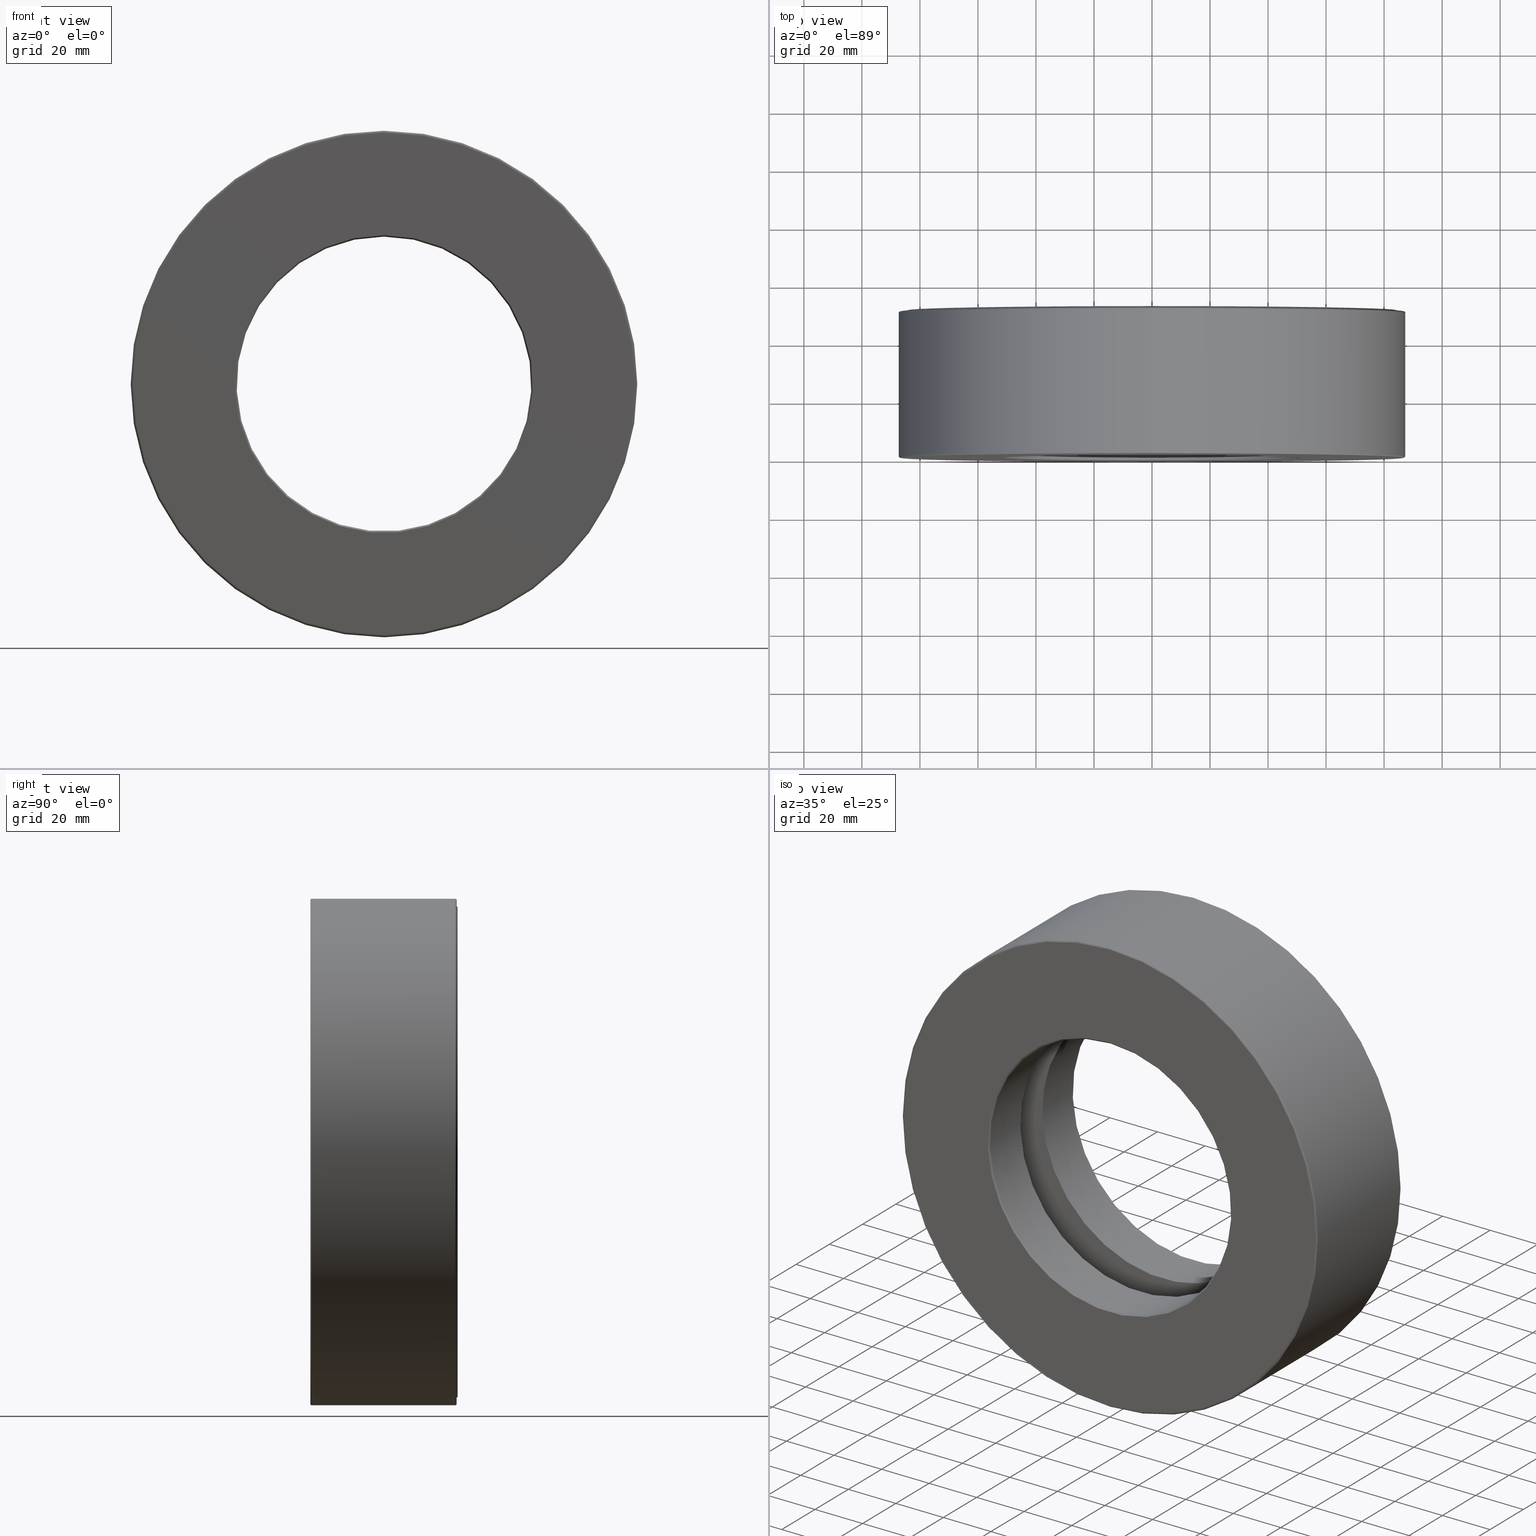
[diagram: canonical four-view strip — front | top / right | iso, engineering-drawing reading convention]
A machine part, canonical four-view strip (front | top / right | iso — engineering-drawing reading convention). The complete STEP part file that produces these views, byte-faithful:
ISO-10303-21;
HEADER;
FILE_DESCRIPTION (( 'STEP AP203' ),
    '1' );
FILE_NAME ('T-100-52.step',
    '2016-06-29T18:27:44',
    ( '' ),
    ( '' ),
    'SwSTEP 2.0',
    'SolidWorks 2016',
    '' );
FILE_SCHEMA (( 'CONFIG_CONTROL_DESIGN' ));
ENDSEC;

DATA;
#1 = EDGE_CURVE ( 'NONE', #572, #572, #26, .T. ) ;
#2 = CIRCLE ( 'NONE', #331, 2.020000000000000500 ) ;
#3 = CARTESIAN_POINT ( 'NONE',  ( 0.0000000000000000000, 0.7374999999999996000, 3.417500000000000000 ) ) ;
#4 = VERTEX_POINT ( 'NONE', #431 ) ;
#5 = AXIS2_PLACEMENT_3D ( 'NONE', #587, #73, #182 ) ;
#6 = CARTESIAN_POINT ( 'NONE',  ( 0.0000000000000000000, 1.999999999999999800, 0.0000000000000000000 ) ) ;
#7 = DIRECTION ( 'NONE',  ( 0.0000000000000000000, 0.0000000000000000000, 1.000000000000000000 ) ) ;
#8 = CLOSED_SHELL ( 'NONE', ( #452 ) ) ;
#9 = EDGE_LOOP ( 'NONE', ( #128 ) ) ;
#10 = FACE_BOUND ( 'NONE', #75, .T. ) ;
#11 = VERTEX_POINT ( 'NONE', #377 ) ;
#12 = DESIGN_CONTEXT ( 'detailed design', #260, 'design' ) ;
#13 = DIRECTION ( 'NONE',  ( -0.0000000000000000000, 1.000000000000000000, -0.0000000000000000000 ) ) ;
#14 = AXIS2_PLACEMENT_3D ( 'NONE', #588, #123, #497 ) ;
#15 = DIRECTION ( 'NONE',  ( -0.0000000000000000000, 1.000000000000000000, -0.0000000000000000000 ) ) ;
#16 = ADVANCED_FACE ( 'NONE', ( ), #236, .T. ) ;
#17 = ORIENTED_EDGE ( 'NONE', *, *, #300, .T. ) ;
#18 = PERSON_AND_ORGANIZATION ( #30, #92 ) ;
#19 = APPROVAL_STATUS ( 'not_yet_approved' ) ;
#20 = VERTEX_POINT ( 'NONE', #99 ) ;
#21 = APPROVAL_STATUS ( 'not_yet_approved' ) ;
#22 = ADVANCED_FACE ( 'NONE', ( #458, #264 ), #60, .T. ) ;
#23 = ORIENTED_EDGE ( 'NONE', *, *, #595, .F. ) ;
#24 = ORIENTED_EDGE ( 'NONE', *, *, #1, .T. ) ;
#25 = AXIS2_PLACEMENT_3D ( 'NONE', #183, #552, #373 ) ;
#26 = CIRCLE ( 'NONE', #356, 3.417500000000000400 ) ;
#27 = PERSON_AND_ORGANIZATION_ROLE ( 'design_supplier' ) ;
#28 = CARTESIAN_POINT ( 'NONE',  ( 2.971000000000000500, 1.000000000000000000, -2.074638211540590300E-014 ) ) ;
#29 = ORIENTED_EDGE ( 'NONE', *, *, #400, .T. ) ;
#30 = PERSON ( 'UNSPECIFIED', 'UNSPECIFIED', 'UNSPECIFIED', ('UNSPECIFIED'), ('UNSPECIFIED'), ('UNSPECIFIED') ) ;
#31 = PERSON_AND_ORGANIZATION ( #30, #92 ) ;
#32 = DIRECTION ( 'NONE',  ( 0.0000000000000000000, -1.000000000000000000, 0.0000000000000000000 ) ) ;
#33 = AXIS2_PLACEMENT_3D ( 'NONE', #248, #335, #195 ) ;
#34 = CARTESIAN_POINT ( 'NONE',  ( 0.0000000000000000000, 1.964999999999999900, 0.0000000000000000000 ) ) ;
#35 = EDGE_LOOP ( 'NONE', ( #168 ) ) ;
#36 = DIRECTION ( 'NONE',  ( 0.0000000000000000000, 0.0000000000000000000, 1.000000000000000000 ) ) ;
#37 = EDGE_LOOP ( 'NONE', ( #136 ) ) ;
#38 = CIRCLE ( 'NONE', #281, 3.357499999999999900 ) ;
#39 = ADVANCED_FACE ( 'NONE', ( #304, #167 ), #323, .T. ) ;
#40 = DIRECTION ( 'NONE',  ( 0.0000000000000000000, 0.0000000000000000000, 1.000000000000000000 ) ) ;
#41 = AXIS2_PLACEMENT_3D ( 'NONE', #355, #141, #177 ) ;
#42 = DIRECTION ( 'NONE',  ( 0.0000000000000000000, 0.0000000000000000000, 1.000000000000000000 ) ) ;
#43 = EDGE_LOOP ( 'NONE', ( #482 ) ) ;
#44 = ADVANCED_BREP_SHAPE_REPRESENTATION ( 'T-100-52', ( #102, #365, #455, #268, #172, #66, #242 ), #233 ) ;
#45 = CARTESIAN_POINT ( 'NONE',  ( 0.0000000000000000000, -2.326339307104724200E-016, 3.422499999999999900 ) ) ;
#46 = PRODUCT_RELATED_PRODUCT_CATEGORY ( 'detail', '', ( #589 ) ) ;
#47 = CARTESIAN_POINT ( 'NONE',  ( 0.0000000000000000000, 0.7374999999999999300, 2.000000000000000000 ) ) ;
#48 = ORIENTED_EDGE ( 'NONE', *, *, #49, .F. ) ;
#49 = EDGE_CURVE ( 'NONE', #4, #4, #449, .T. ) ;
#50 = FACE_OUTER_BOUND ( 'NONE', #184, .T. ) ;
#51 = AXIS2_PLACEMENT_3D ( 'NONE', #573, #15, #343 ) ;
#52 = DIRECTION ( 'NONE',  ( 0.0000000000000000000, 0.0000000000000000000, 1.000000000000000000 ) ) ;
#53 = EDGE_CURVE ( 'NONE', #577, #577, #551, .T. ) ;
#54 = EDGE_LOOP ( 'NONE', ( #490 ) ) ;
#55 = FACE_OUTER_BOUND ( 'NONE', #254, .T. ) ;
#56 = ADVANCED_FACE ( 'NONE', ( ), #351, .T. ) ;
#57 = APPROVAL_ROLE ( '' ) ;
#58 = EDGE_LOOP ( 'NONE', ( #229 ) ) ;
#59 = AXIS2_PLACEMENT_3D ( 'NONE', #107, #158, #481 ) ;
#60 = CONICAL_SURFACE ( 'NONE', #84, 3.412500000000000100, 0.7853981633974505000 ) ;
#61 = LENGTH_MEASURE_WITH_UNIT ( LENGTH_MEASURE( 0.02539999999999999900 ), #511 );
#62 = DIRECTION ( 'NONE',  ( 0.0000000000000000000, 0.0000000000000000000, -1.000000000000000000 ) ) ;
#63 = EDGE_LOOP ( 'NONE', ( #471 ) ) ;
#64 = AXIS2_PLACEMENT_3D ( 'NONE', #203, #13, #202 ) ;
#65 = PLANE ( 'NONE',  #597 ) ;
#66 = MANIFOLD_SOLID_BREP ( 'BALLS[3]', #272 ) ;
#67 = FACE_OUTER_BOUND ( 'NONE', #119, .T. ) ;
#68 = DATE_AND_TIME ( #295, #170 ) ;
#69 = VERTEX_POINT ( 'NONE', #567 ) ;
#70 = DIRECTION ( 'NONE',  ( 0.0000000000000000000, 0.0000000000000000000, 1.000000000000000000 ) ) ;
#71 = AXIS2_PLACEMENT_3D ( 'NONE', #507, #423, #598 ) ;
#72 = PLANE ( 'NONE',  #291 ) ;
#73 = DIRECTION ( 'NONE',  ( 0.0000000000000000000, -1.000000000000000000, 0.0000000000000000000 ) ) ;
#74 = DIRECTION ( 'NONE',  ( 1.000000000000000000, 0.0000000000000000000, 0.0000000000000000000 ) ) ;
#75 = EDGE_LOOP ( 'NONE', ( #333 ) ) ;
#76 = CARTESIAN_POINT ( 'NONE',  ( 0.0000000000000000000, 1.984999999999999400, 0.0000000000000000000 ) ) ;
#77 = CYLINDRICAL_SURFACE ( 'NONE', #14, 2.000000000000000000 ) ;
#78 = FACE_OUTER_BOUND ( 'NONE', #606, .T. ) ;
#79 = EDGE_CURVE ( 'NONE', #69, #69, #312, .T. ) ;
#80 = CARTESIAN_POINT ( 'NONE',  ( 0.0000000000000000000, 0.7374999999999996000, 0.0000000000000000000 ) ) ;
#81 = ADVANCED_FACE ( 'NONE', ( #491, #10 ), #404, .T. ) ;
#82 = AXIS2_PLACEMENT_3D ( 'NONE', #545, #32, #364 ) ;
#83 = DIRECTION ( 'NONE',  ( -0.0000000000000000000, 1.000000000000000000, -0.0000000000000000000 ) ) ;
#84 = AXIS2_PLACEMENT_3D ( 'NONE', #210, #531, #590 ) ;
#85 = DIRECTION ( 'NONE',  ( -0.0000000000000000000, 1.000000000000000000, -0.0000000000000000000 ) ) ;
#86 = ORIENTED_EDGE ( 'NONE', *, *, #319, .T. ) ;
#87 = DIRECTION ( 'NONE',  ( -1.000000000000000000, 0.0000000000000000000, 3.491481338843132200E-015 ) ) ;
#88 = TOROIDAL_SURFACE ( 'NONE', #302, 2.971000000000000100, 0.4374999999999998300 ) ;
#89 = PLANE ( 'NONE',  #25 ) ;
#90 = DIRECTION ( 'NONE',  ( 0.0000000000000000000, 0.0000000000000000000, 1.000000000000000000 ) ) ;
#91 = CARTESIAN_POINT ( 'NONE',  ( 0.0000000000000000000, 0.01499999999999997700, 3.437500000000000000 ) ) ;
#92 = ORGANIZATION ( 'UNSPECIFIED', 'UNSPECIFIED', '' ) ;
#93 =( CONVERSION_BASED_UNIT ( 'INCH', #61 ) LENGTH_UNIT ( ) NAMED_UNIT ( #500 ) );
#94 = EDGE_LOOP ( 'NONE', ( #23 ) ) ;
#95 = CARTESIAN_POINT ( 'NONE',  ( 0.0000000000000000000, 1.262500000000000000, 3.320999999999999700 ) ) ;
#96 = FACE_OUTER_BOUND ( 'NONE', #416, .T. ) ;
#97 = FACE_BOUND ( 'NONE', #292, .T. ) ;
#98 = AXIS2_PLACEMENT_3D ( 'NONE', #80, #134, #504 ) ;
#99 = CARTESIAN_POINT ( 'NONE',  ( 0.0000000000000000000, 1.984999999999999400, 3.357499999999999900 ) ) ;
#100 = DIRECTION ( 'NONE',  ( -0.0000000000000000000, 1.000000000000000000, -0.0000000000000000000 ) ) ;
#101 = CARTESIAN_POINT ( 'NONE',  ( 0.0000000000000000000, 0.0000000000000000000, 0.0000000000000000000 ) ) ;
#102 = MANIFOLD_SOLID_BREP ( 'Revolve2[1]', #521 ) ;
#103 = APPROVAL ( #21, 'UNSPECIFIED' ) ;
#104 = CARTESIAN_POINT ( 'NONE',  ( 0.0000000000000000000, 1.964999999999999200, 0.0000000000000000000 ) ) ;
#105 = ORIENTED_EDGE ( 'NONE', *, *, #251, .T. ) ;
#106 = FACE_BOUND ( 'NONE', #262, .T. ) ;
#107 = CARTESIAN_POINT ( 'NONE',  ( 0.0000000000000000000, 0.0000000000000000000, 0.0000000000000000000 ) ) ;
#108 = DIRECTION ( 'NONE',  ( 0.0000000000000000000, 0.0000000000000000000, 1.000000000000000000 ) ) ;
#109 = DATE_AND_TIME ( #475, #245 ) ;
#110 = AXIS2_PLACEMENT_3D ( 'NONE', #418, #85, #422 ) ;
#111 = SPHERICAL_SURFACE ( 'NONE', #211, 0.4374999999999998900 ) ;
#112 = ADVANCED_FACE ( 'NONE', ( #341, #509 ), #72, .F. ) ;
#113 = ORIENTED_EDGE ( 'NONE', *, *, #117, .T. ) ;
#114 = FACE_OUTER_BOUND ( 'NONE', #461, .T. ) ;
#115 = VERTEX_POINT ( 'NONE', #243 ) ;
#116 = SECURITY_CLASSIFICATION ( '', '', #165 ) ;
#117 = EDGE_CURVE ( 'NONE', #501, #501, #600, .T. ) ;
#118 = AXIS2_PLACEMENT_3D ( 'NONE', #536, #357, #266 ) ;
#119 = EDGE_LOOP ( 'NONE', ( #135 ) ) ;
#120 = CONICAL_SURFACE ( 'NONE', #349, 2.000000000000000400, 0.7853981633974415100 ) ;
#121 = CARTESIAN_POINT ( 'NONE',  ( 0.0000000000000000000, 0.004999999999998736400, 0.0000000000000000000 ) ) ;
#122 = DIRECTION ( 'NONE',  ( 0.0000000000000000000, 0.0000000000000000000, 1.000000000000000000 ) ) ;
#123 = DIRECTION ( 'NONE',  ( -0.0000000000000000000, 1.000000000000000000, -0.0000000000000000000 ) ) ;
#124 = CARTESIAN_POINT ( 'NONE',  ( -4.194776189887549200E-016, 2.000000000000000000, 0.0000000000000000000 ) ) ;
#125 = DIRECTION ( 'NONE',  ( -0.0000000000000000000, 1.000000000000000000, 0.0000000000000000000 ) ) ;
#126 = ORIENTED_EDGE ( 'NONE', *, *, #400, .F. ) ;
#127 = CARTESIAN_POINT ( 'NONE',  ( 2.910488825740508700E-033, -2.325053432460523400E-016, 0.0000000000000000000 ) ) ;
#128 = ORIENTED_EDGE ( 'NONE', *, *, #256, .F. ) ;
#129 = CARTESIAN_POINT ( 'NONE',  ( 0.0000000000000000000, 1.262500000000000000, 0.0000000000000000000 ) ) ;
#130 = EDGE_CURVE ( 'NONE', #232, #232, #372, .T. ) ;
#131 = DATE_AND_TIME ( #252, #160 ) ;
#132 = AXIS2_PLACEMENT_3D ( 'NONE', #101, #157, #383 ) ;
#133 = DIRECTION ( 'NONE',  ( 0.0000000000000000000, 0.0000000000000000000, 1.000000000000000000 ) ) ;
#134 = DIRECTION ( 'NONE',  ( -0.0000000000000000000, 1.000000000000000000, -0.0000000000000000000 ) ) ;
#135 = ORIENTED_EDGE ( 'NONE', *, *, #442, .T. ) ;
#136 = ORIENTED_EDGE ( 'NONE', *, *, #79, .T. ) ;
#137 = CARTESIAN_POINT ( 'NONE',  ( 0.0000000000000000000, 1.911999999999999700, 0.0000000000000000000 ) ) ;
#138 = PRODUCT_DEFINITION_FORMATION_WITH_SPECIFIED_SOURCE ( 'ANY', '', #589, .NOT_KNOWN. ) ;
#139 = FACE_OUTER_BOUND ( 'NONE', #145, .T. ) ;
#140 = ADVANCED_FACE ( 'NONE', ( #294, #346 ), #120, .F. ) ;
#141 = DIRECTION ( 'NONE',  ( -0.0000000000000000000, 1.000000000000000000, -0.0000000000000000000 ) ) ;
#142 = AXIS2_PLACEMENT_3D ( 'NONE', #454, #453, #408 ) ;
#143 = CARTESIAN_POINT ( 'NONE',  ( 0.0000000000000000000, 1.000000000000000000, 0.0000000000000000000 ) ) ;
#144 = DIRECTION ( 'NONE',  ( 0.0000000000000000000, -0.0000000000000000000, -1.000000000000000000 ) ) ;
#145 = EDGE_LOOP ( 'NONE', ( #538 ) ) ;
#146 = AXIS2_PLACEMENT_3D ( 'NONE', #519, #561, #286 ) ;
#147 = CARTESIAN_POINT ( 'NONE',  ( 0.0000000000000000000, 1.985000000000000100, 3.417500000000000400 ) ) ;
#148 = FACE_BOUND ( 'NONE', #35, .T. ) ;
#149 = CC_DESIGN_PERSON_AND_ORGANIZATION_ASSIGNMENT ( #18, #489, ( #116 ) ) ;
#150 = CARTESIAN_POINT ( 'NONE',  ( -3.111957317310885400E-014, 1.000000000000000000, -2.971000000000000500 ) ) ;
#151 = EDGE_CURVE ( 'NONE', #444, #444, #280, .T. ) ;
#152 = ORIENTED_EDGE ( 'NONE', *, *, #1, .F. ) ;
#153 = ORIENTED_EDGE ( 'NONE', *, *, #270, .F. ) ;
#154 = FACE_OUTER_BOUND ( 'NONE', #532, .T. ) ;
#155 = AXIS2_PLACEMENT_3D ( 'NONE', #28, #275, #583 ) ;
#156 = AXIS2_PLACEMENT_3D ( 'NONE', #223, #62, #74 ) ;
#157 = DIRECTION ( 'NONE',  ( -0.0000000000000000000, 1.000000000000000000, -0.0000000000000000000 ) ) ;
#158 = DIRECTION ( 'NONE',  ( -0.0000000000000000000, 1.000000000000000000, -0.0000000000000000000 ) ) ;
#159 = EDGE_LOOP ( 'NONE', ( #385 ) ) ;
#160 = LOCAL_TIME ( 14, 27, 44.00000000000000000, #255 ) ;
#161 = ADVANCED_FACE ( 'NONE', ( #193, #114 ), #199, .F. ) ;
#162 = CC_DESIGN_PERSON_AND_ORGANIZATION_ASSIGNMENT ( #31, #212, ( #516 ) ) ;
#163 = EDGE_CURVE ( 'NONE', #459, #459, #479, .T. ) ;
#164 = PERSON_AND_ORGANIZATION_ROLE ( 'design_owner' ) ;
#165 = SECURITY_CLASSIFICATION_LEVEL ( 'unclassified' ) ;
#166 = AXIS2_PLACEMENT_3D ( 'NONE', #592, #269, #359 ) ;
#167 = FACE_BOUND ( 'NONE', #498, .T. ) ;
#168 = ORIENTED_EDGE ( 'NONE', *, *, #256, .T. ) ;
#169 = CYLINDRICAL_SURFACE ( 'NONE', #59, 3.437500000000000000 ) ;
#170 = LOCAL_TIME ( 14, 27, 44.00000000000000000, #180 ) ;
#171 = CC_DESIGN_PERSON_AND_ORGANIZATION_ASSIGNMENT ( #394, #578, ( #138 ) ) ;
#172 = MANIFOLD_SOLID_BREP ( 'BALLS[2]', #526 ) ;
#173 = DIRECTION ( 'NONE',  ( -0.0000000000000000000, 1.000000000000000000, -0.0000000000000000000 ) ) ;
#174 = FACE_BOUND ( 'NONE', #278, .T. ) ;
#175 = ADVANCED_FACE ( 'NONE', ( #106, #139 ), #89, .T. ) ;
#176 = AXIS2_PLACEMENT_3D ( 'NONE', #121, #494, #276 ) ;
#177 = DIRECTION ( 'NONE',  ( 0.0000000000000000000, 0.0000000000000000000, 1.000000000000000000 ) ) ;
#178 = ORIENTED_EDGE ( 'NONE', *, *, #130, .F. ) ;
#179 = EDGE_CURVE ( 'NONE', #566, #566, #388, .T. ) ;
#180 = COORDINATED_UNIVERSAL_TIME_OFFSET ( 5, 0, .BEHIND. ) ;
#181 = PLANE ( 'NONE',  #534 ) ;
#182 = DIRECTION ( 'NONE',  ( 0.0000000000000000000, 0.0000000000000000000, -1.000000000000000000 ) ) ;
#183 = CARTESIAN_POINT ( 'NONE',  ( 0.0000000000000000000, 1.262500000000000000, 0.0000000000000000000 ) ) ;
#184 = EDGE_LOOP ( 'NONE', ( #311 ) ) ;
#185 = ADVANCED_FACE ( 'NONE', ( #186, #250 ), #584, .T. ) ;
#186 = FACE_OUTER_BOUND ( 'NONE', #396, .T. ) ;
#187 = DIRECTION ( 'NONE',  ( 0.0000000000000000000, 0.0000000000000000000, 1.000000000000000000 ) ) ;
#188 = AXIS2_PLACEMENT_3D ( 'NONE', #437, #100, #478 ) ;
#189 = CARTESIAN_POINT ( 'NONE',  ( 0.0000000000000000000, 0.0000000000000000000, 0.0000000000000000000 ) ) ;
#190 = DIRECTION ( 'NONE',  ( 0.0000000000000000000, 0.0000000000000000000, 1.000000000000000000 ) ) ;
#191 = EDGE_LOOP ( 'NONE', ( #430 ) ) ;
#192 = DIRECTION ( 'NONE',  ( 0.0000000000000000000, 0.0000000000000000000, 1.000000000000000000 ) ) ;
#193 = FACE_OUTER_BOUND ( 'NONE', #371, .T. ) ;
#194 = VERTEX_POINT ( 'NONE', #196 ) ;
#195 = DIRECTION ( 'NONE',  ( 0.0000000000000000000, 0.0000000000000000000, 1.000000000000000000 ) ) ;
#196 = CARTESIAN_POINT ( 'NONE',  ( 0.0000000000000000000, 1.979999999999999500, 2.000000000000000400 ) ) ;
#197 = EDGE_CURVE ( 'NONE', #20, #20, #38, .T. ) ;
#198 = ORIENTED_EDGE ( 'NONE', *, *, #412, .F. ) ;
#199 = CYLINDRICAL_SURFACE ( 'NONE', #523, 3.357499999999999900 ) ;
#200 = DIRECTION ( 'NONE',  ( 0.0000000000000000000, -1.000000000000000000, 0.0000000000000000000 ) ) ;
#201 = VERTEX_POINT ( 'NONE', #427 ) ;
#202 = DIRECTION ( 'NONE',  ( 0.0000000000000000000, 0.0000000000000000000, 1.000000000000000000 ) ) ;
#203 = CARTESIAN_POINT ( 'NONE',  ( 0.0000000000000000000, 2.731847993664263200E-016, 0.0000000000000000000 ) ) ;
#204 = ORIENTED_EDGE ( 'NONE', *, *, #442, .F. ) ;
#205 = CYLINDRICAL_SURFACE ( 'NONE', #506, 2.000000000000000000 ) ;
#206 = CIRCLE ( 'NONE', #259, 3.322499999999999300 ) ;
#207 = EDGE_CURVE ( 'NONE', #201, #201, #473, .T. ) ;
#208 = FACE_BOUND ( 'NONE', #63, .T. ) ;
#209 = ADVANCED_FACE ( 'NONE', ( #463, #96 ), #205, .F. ) ;
#210 = CARTESIAN_POINT ( 'NONE',  ( 0.0000000000000000000, -2.315668025879473100E-016, 0.0000000000000000000 ) ) ;
#211 = AXIS2_PLACEMENT_3D ( 'NONE', #150, #560, #289 ) ;
#212 = PERSON_AND_ORGANIZATION_ROLE ( 'creator' ) ;
#213 = EDGE_LOOP ( 'NONE', ( #86 ) ) ;
#214 = FACE_OUTER_BOUND ( 'NONE', #328, .T. ) ;
#215 = VERTEX_POINT ( 'NONE', #374 ) ;
#216 = ADVANCED_FACE ( 'NONE', ( #334, #224 ), #88, .F. ) ;
#217 = DATE_TIME_ROLE ( 'classification_date' ) ;
#218 = DIRECTION ( 'NONE',  ( 1.000000000000000000, 0.0000000000000000000, 0.0000000000000000000 ) ) ;
#219 = DIRECTION ( 'NONE',  ( 0.0000000000000000000, 0.0000000000000000000, 1.000000000000000000 ) ) ;
#220 = AXIS2_PLACEMENT_3D ( 'NONE', #283, #227, #537 ) ;
#221 = AXIS2_PLACEMENT_3D ( 'NONE', #580, #228, #122 ) ;
#222 = EDGE_LOOP ( 'NONE', ( #198 ) ) ;
#223 = CARTESIAN_POINT ( 'NONE',  ( -2.971000000000000500, 1.000000000000000000, 0.0000000000000000000 ) ) ;
#224 = FACE_OUTER_BOUND ( 'NONE', #438, .T. ) ;
#225 = CALENDAR_DATE ( 2016, 29, 6 ) ;
#226 = CARTESIAN_POINT ( 'NONE',  ( 0.0000000000000000000, 1.985000000000000100, 0.0000000000000000000 ) ) ;
#227 = DIRECTION ( 'NONE',  ( -0.0000000000000000000, 1.000000000000000000, -0.0000000000000000000 ) ) ;
#228 = DIRECTION ( 'NONE',  ( -0.0000000000000000000, 1.000000000000000000, -0.0000000000000000000 ) ) ;
#229 = ORIENTED_EDGE ( 'NONE', *, *, #524, .F. ) ;
#230 = EDGE_CURVE ( 'NONE', #336, #336, #557, .T. ) ;
#231 = FACE_OUTER_BOUND ( 'NONE', #456, .T. ) ;
#232 = VERTEX_POINT ( 'NONE', #95 ) ;
#233 =( GEOMETRIC_REPRESENTATION_CONTEXT ( 3 ) GLOBAL_UNCERTAINTY_ASSIGNED_CONTEXT ( ( #517 ) ) GLOBAL_UNIT_ASSIGNED_CONTEXT ( ( #93, #348, #301 ) ) REPRESENTATION_CONTEXT ( 'NONE', 'WORKASPACE' ) );
#234 = CARTESIAN_POINT ( 'NONE',  ( 0.0000000000000000000, 0.7374999999999999300, 0.0000000000000000000 ) ) ;
#235 = EDGE_LOOP ( 'NONE', ( #414 ) ) ;
#236 = SPHERICAL_SURFACE ( 'NONE', #156, 0.4374999999999998900 ) ;
#237 = PERSON_AND_ORGANIZATION ( #30, #92 ) ;
#238 = CIRCLE ( 'NONE', #142, 3.412500000000000100 ) ;
#239 = CARTESIAN_POINT ( 'NONE',  ( 0.0000000000000000000, -2.323767557816322600E-016, 3.417500000000000000 ) ) ;
#240 = DIRECTION ( 'NONE',  ( -0.0000000000000000000, 1.000000000000000000, -0.0000000000000000000 ) ) ;
#241 = CLOSED_SHELL ( 'NONE', ( #175, #216, #487, #209, #140, #81, #415, #553 ) ) ;
#242 = AXIS2_PLACEMENT_3D ( 'NONE', #559, #284, #218 ) ;
#243 = CARTESIAN_POINT ( 'NONE',  ( 0.0000000000000000000, 0.7374999999999997100, 3.320999999999999700 ) ) ;
#244 = FACE_OUTER_BOUND ( 'NONE', #369, .T. ) ;
#245 = LOCAL_TIME ( 14, 27, 44.00000000000000000, #484 ) ;
#246 = DIRECTION ( 'NONE',  ( -0.0000000000000000000, 1.000000000000000000, -0.0000000000000000000 ) ) ;
#247 = CYLINDRICAL_SURFACE ( 'NONE', #33, 3.410500000000000300 ) ;
#248 = CARTESIAN_POINT ( 'NONE',  ( 0.0000000000000000000, 0.0000000000000000000, 0.0000000000000000000 ) ) ;
#249 = EDGE_LOOP ( 'NONE', ( #547 ) ) ;
#250 = FACE_OUTER_BOUND ( 'NONE', #249, .T. ) ;
#251 = EDGE_CURVE ( 'NONE', #363, #363, #571, .T. ) ;
#252 = CALENDAR_DATE ( 2016, 29, 6 ) ;
#253 = CIRCLE ( 'NONE', #434, 3.410500000000000300 ) ;
#254 = EDGE_LOOP ( 'NONE', ( #277 ) ) ;
#255 = COORDINATED_UNIVERSAL_TIME_OFFSET ( 5, 0, .BEHIND. ) ;
#256 = EDGE_CURVE ( 'NONE', #426, #426, #329, .T. ) ;
#257 = APPLICATION_CONTEXT ( 'configuration controlled 3d designs of mechanical parts and assemblies' ) ;
#258 = ADVANCED_FACE ( 'NONE', ( #432, #55 ), #169, .T. ) ;
#259 = AXIS2_PLACEMENT_3D ( 'NONE', #6, #240, #474 ) ;
#260 = APPLICATION_CONTEXT ( 'configuration controlled 3d designs of mechanical parts and assemblies' ) ;
#261 = ORIENTED_EDGE ( 'NONE', *, *, #130, .T. ) ;
#262 = EDGE_LOOP ( 'NONE', ( #261 ) ) ;
#263 = DIRECTION ( 'NONE',  ( -0.0000000000000000000, 1.000000000000000000, 0.0000000000000000000 ) ) ;
#264 = FACE_BOUND ( 'NONE', #508, .T. ) ;
#265 = CC_DESIGN_DATE_AND_TIME_ASSIGNMENT ( #109, #392, ( #516 ) ) ;
#266 = DIRECTION ( 'NONE',  ( 0.0000000000000000000, 0.0000000000000000000, 1.000000000000000000 ) ) ;
#267 = DIRECTION ( 'NONE',  ( -0.0000000000000000000, 1.000000000000000000, -0.0000000000000000000 ) ) ;
#268 = MANIFOLD_SOLID_BREP ( 'BALLS[1]', #8 ) ;
#269 = DIRECTION ( 'NONE',  ( -0.0000000000000000000, 1.000000000000000000, -0.0000000000000000000 ) ) ;
#270 = EDGE_CURVE ( 'NONE', #11, #11, #307, .T. ) ;
#271 = ADVANCED_FACE ( 'NONE', ( #50, #67 ), #483, .F. ) ;
#272 = CLOSED_SHELL ( 'NONE', ( #525 ) ) ;
#273 = DIRECTION ( 'NONE',  ( -0.0000000000000000000, 1.000000000000000000, 0.0000000000000000000 ) ) ;
#274 = PERSON_AND_ORGANIZATION ( #30, #92 ) ;
#275 = DIRECTION ( 'NONE',  ( 6.982962677686264300E-015, -0.0000000000000000000, 1.000000000000000000 ) ) ;
#276 = DIRECTION ( 'NONE',  ( 0.0000000000000000000, 0.0000000000000000000, 1.000000000000000000 ) ) ;
#277 = ORIENTED_EDGE ( 'NONE', *, *, #309, .T. ) ;
#278 = EDGE_LOOP ( 'NONE', ( #548 ) ) ;
#279 = DIRECTION ( 'NONE',  ( 0.0000000000000000000, 0.0000000000000000000, 1.000000000000000000 ) ) ;
#280 = CIRCLE ( 'NONE', #384, 3.410499999999999400 ) ;
#281 = AXIS2_PLACEMENT_3D ( 'NONE', #76, #413, #133 ) ;
#282 = DIRECTION ( 'NONE',  ( -0.0000000000000000000, 1.000000000000000000, -0.0000000000000000000 ) ) ;
#283 = CARTESIAN_POINT ( 'NONE',  ( 0.0000000000000000000, 1.000000000000000000, 0.0000000000000000000 ) ) ;
#284 = DIRECTION ( 'NONE',  ( 0.0000000000000000000, 0.0000000000000000000, 1.000000000000000000 ) ) ;
#285 = ORIENTED_EDGE ( 'NONE', *, *, #179, .F. ) ;
#286 = DIRECTION ( 'NONE',  ( 0.0000000000000000000, -0.0000000000000000000, -1.000000000000000000 ) ) ;
#287 = APPROVAL ( #19, 'UNSPECIFIED' ) ;
#288 = CARTESIAN_POINT ( 'NONE',  ( 0.0000000000000000000, 1.965000000000000300, 3.437500000000000000 ) ) ;
#289 = DIRECTION ( 'NONE',  ( 1.047444401652939700E-014, 0.0000000000000000000, 1.000000000000000000 ) ) ;
#290 = ORIENTED_EDGE ( 'NONE', *, *, #564, .T. ) ;
#291 = AXIS2_PLACEMENT_3D ( 'NONE', #127, #263, #279 ) ;
#292 = EDGE_LOOP ( 'NONE', ( #599 ) ) ;
#293 = CARTESIAN_POINT ( 'NONE',  ( 0.0000000000000000000, 0.02000000000000033300, 2.000000000000000000 ) ) ;
#294 = FACE_OUTER_BOUND ( 'NONE', #213, .T. ) ;
#295 = CALENDAR_DATE ( 2016, 29, 6 ) ;
#296 = EDGE_LOOP ( 'NONE', ( #425 ) ) ;
#297 = CC_DESIGN_DATE_AND_TIME_ASSIGNMENT ( #378, #217, ( #116 ) ) ;
#298 = CLOSED_SHELL ( 'NONE', ( #16 ) ) ;
#299 = FACE_BOUND ( 'NONE', #191, .T. ) ;
#300 = EDGE_CURVE ( 'NONE', #115, #115, #362, .T. ) ;
#301 =( NAMED_UNIT ( * ) SI_UNIT ( $, .STERADIAN. ) SOLID_ANGLE_UNIT ( ) );
#302 = AXIS2_PLACEMENT_3D ( 'NONE', #143, #338, #52 ) ;
#303 = CIRCLE ( 'NONE', #176, 3.417499999999999100 ) ;
#304 = FACE_OUTER_BOUND ( 'NONE', #54, .T. ) ;
#305 = EDGE_LOOP ( 'NONE', ( #570 ) ) ;
#306 = APPROVAL ( #530, 'UNSPECIFIED' ) ;
#307 = CIRCLE ( 'NONE', #399, 3.357499999999999900 ) ;
#308 = APPLICATION_PROTOCOL_DEFINITION ( 'international standard', 'config_control_design', 1994, #257 ) ;
#309 = EDGE_CURVE ( 'NONE', #480, #480, #533, .T. ) ;
#310 = FACE_OUTER_BOUND ( 'NONE', #235, .T. ) ;
#311 = ORIENTED_EDGE ( 'NONE', *, *, #230, .F. ) ;
#312 = CIRCLE ( 'NONE', #568, 2.621000000000000400 ) ;
#313 = SHAPE_DEFINITION_REPRESENTATION ( #435, #44 ) ;
#314 = CARTESIAN_POINT ( 'NONE',  ( -5.586162433546051900E-032, 2.080899838923950600E-017, 0.0000000000000000000 ) ) ;
#315 = FACE_OUTER_BOUND ( 'NONE', #345, .T. ) ;
#316 = DIRECTION ( 'NONE',  ( -0.0000000000000000000, 1.000000000000000000, -0.0000000000000000000 ) ) ;
#317 = DIRECTION ( 'NONE',  ( 0.0000000000000000000, 0.0000000000000000000, 1.000000000000000000 ) ) ;
#318 = CARTESIAN_POINT ( 'NONE',  ( 1.037319105770295100E-014, 1.000000000000000000, 2.971000000000000500 ) ) ;
#319 = EDGE_CURVE ( 'NONE', #379, #379, #2, .T. ) ;
#320 = EDGE_LOOP ( 'NONE', ( #17 ) ) ;
#321 = DIRECTION ( 'NONE',  ( -0.0000000000000000000, 1.000000000000000000, -0.0000000000000000000 ) ) ;
#322 = EDGE_LOOP ( 'NONE', ( #290 ) ) ;
#323 = CONICAL_SURFACE ( 'NONE', #221, 3.422499999999999900, 0.7853981633974496100 ) ;
#324 = VERTEX_POINT ( 'NONE', #604 ) ;
#325 = AXIS2_PLACEMENT_3D ( 'NONE', #129, #502, #563 ) ;
#326 = DIRECTION ( 'NONE',  ( -0.0000000000000000000, 1.000000000000000000, -0.0000000000000000000 ) ) ;
#327 = DIRECTION ( 'NONE',  ( -0.0000000000000000000, 1.000000000000000000, -0.0000000000000000000 ) ) ;
#328 = EDGE_LOOP ( 'NONE', ( #391 ) ) ;
#329 = CIRCLE ( 'NONE', #64, 2.020000000000000000 ) ;
#330 = DIRECTION ( 'NONE',  ( -0.0000000000000000000, 1.000000000000000000, -0.0000000000000000000 ) ) ;
#331 = AXIS2_PLACEMENT_3D ( 'NONE', #389, #352, #190 ) ;
#332 = DIRECTION ( 'NONE',  ( -0.0000000000000000000, 1.000000000000000000, -0.0000000000000000000 ) ) ;
#333 = ORIENTED_EDGE ( 'NONE', *, *, #319, .F. ) ;
#334 = FACE_OUTER_BOUND ( 'NONE', #37, .T. ) ;
#335 = DIRECTION ( 'NONE',  ( -0.0000000000000000000, 1.000000000000000000, -0.0000000000000000000 ) ) ;
#336 = VERTEX_POINT ( 'NONE', #239 ) ;
#337 = DIRECTION ( 'NONE',  ( -0.0000000000000000000, 1.000000000000000000, -0.0000000000000000000 ) ) ;
#338 = DIRECTION ( 'NONE',  ( -0.0000000000000000000, 1.000000000000000000, -0.0000000000000000000 ) ) ;
#339 = AXIS2_PLACEMENT_3D ( 'NONE', #34, #327, #40 ) ;
#340 = EDGE_LOOP ( 'NONE', ( #113 ) ) ;
#341 = FACE_OUTER_BOUND ( 'NONE', #350, .T. ) ;
#342 = LOCAL_TIME ( 14, 27, 44.00000000000000000, #465 ) ;
#343 = DIRECTION ( 'NONE',  ( 0.0000000000000000000, 0.0000000000000000000, 1.000000000000000000 ) ) ;
#344 = ADVANCED_FACE ( 'NONE', ( #244, #593 ), #439, .F. ) ;
#345 = EDGE_LOOP ( 'NONE', ( #376 ) ) ;
#346 = FACE_BOUND ( 'NONE', #520, .T. ) ;
#347 = PERSON_AND_ORGANIZATION ( #30, #92 ) ;
#348 =( NAMED_UNIT ( * ) PLANE_ANGLE_UNIT ( ) SI_UNIT ( $, .RADIAN. ) );
#349 = AXIS2_PLACEMENT_3D ( 'NONE', #596, #83, #187 ) ;
#350 = EDGE_LOOP ( 'NONE', ( #448 ) ) ;
#351 = SPHERICAL_SURFACE ( 'NONE', #155, 0.4374999999999998900 ) ;
#352 = DIRECTION ( 'NONE',  ( -0.0000000000000000000, 1.000000000000000000, -0.0000000000000000000 ) ) ;
#353 = VERTEX_POINT ( 'NONE', #429 ) ;
#354 = CARTESIAN_POINT ( 'NONE',  ( 0.0000000000000000000, 1.262500000000000000, 0.0000000000000000000 ) ) ;
#355 = CARTESIAN_POINT ( 'NONE',  ( 0.0000000000000000000, 0.0000000000000000000, 0.0000000000000000000 ) ) ;
#356 = AXIS2_PLACEMENT_3D ( 'NONE', #226, #316, #544 ) ;
#357 = DIRECTION ( 'NONE',  ( -0.0000000000000000000, 1.000000000000000000, -0.0000000000000000000 ) ) ;
#358 = CONICAL_SURFACE ( 'NONE', #428, 3.322499999999999300, 0.7853981633974498300 ) ;
#359 = DIRECTION ( 'NONE',  ( 0.0000000000000000000, 0.0000000000000000000, 1.000000000000000000 ) ) ;
#360 = EDGE_LOOP ( 'NONE', ( #582 ) ) ;
#361 = AXIS2_PLACEMENT_3D ( 'NONE', #472, #579, #90 ) ;
#362 = CIRCLE ( 'NONE', #585, 3.320999999999999700 ) ;
#363 = VERTEX_POINT ( 'NONE', #45 ) ;
#364 = DIRECTION ( 'NONE',  ( 0.0000000000000000000, -0.0000000000000000000, -1.000000000000000000 ) ) ;
#365 = MANIFOLD_SOLID_BREP ( 'Revolve2[2]', #241 ) ;
#366 = DIRECTION ( 'NONE',  ( 0.0000000000000000000, 0.0000000000000000000, 1.000000000000000000 ) ) ;
#367 = ADVANCED_FACE ( 'NONE', ( #214, #419 ), #77, .F. ) ;
#368 = CC_DESIGN_APPROVAL ( #287, ( #516 ) ) ;
#369 = EDGE_LOOP ( 'NONE', ( #555 ) ) ;
#370 = CARTESIAN_POINT ( 'NONE',  ( 0.0000000000000000000, 1.262500000000000000, 0.0000000000000000000 ) ) ;
#371 = EDGE_LOOP ( 'NONE', ( #153 ) ) ;
#372 = CIRCLE ( 'NONE', #417, 3.320999999999999700 ) ;
#373 = DIRECTION ( 'NONE',  ( 0.0000000000000000000, -0.0000000000000000000, -1.000000000000000000 ) ) ;
#374 = CARTESIAN_POINT ( 'NONE',  ( 0.0000000000000000000, 1.964999999999999200, 3.417500000000000400 ) ) ;
#375 = CARTESIAN_POINT ( 'NONE',  ( 0.0000000000000000000, 2.731847993664263200E-016, 2.020000000000000000 ) ) ;
#376 = ORIENTED_EDGE ( 'NONE', *, *, #151, .T. ) ;
#377 = CARTESIAN_POINT ( 'NONE',  ( 0.0000000000000000000, 1.964999999999999200, 3.357499999999999900 ) ) ;
#378 = DATE_AND_TIME ( #499, #420 ) ;
#379 = VERTEX_POINT ( 'NONE', #381 ) ;
#380 = CC_DESIGN_APPROVAL ( #103, ( #138 ) ) ;
#381 = CARTESIAN_POINT ( 'NONE',  ( 0.0000000000000000000, 2.000000000000000000, 2.020000000000000500 ) ) ;
#382 = CARTESIAN_POINT ( 'NONE',  ( 0.0000000000000000000, 1.262500000000000000, 0.0000000000000000000 ) ) ;
#383 = DIRECTION ( 'NONE',  ( 0.0000000000000000000, 0.0000000000000000000, 1.000000000000000000 ) ) ;
#384 = AXIS2_PLACEMENT_3D ( 'NONE', #137, #510, #594 ) ;
#385 = ORIENTED_EDGE ( 'NONE', *, *, #230, .T. ) ;
#386 = CARTESIAN_POINT ( 'NONE',  ( 0.0000000000000000000, 0.7374999999999997100, 0.0000000000000000000 ) ) ;
#387 = ORIENTED_EDGE ( 'NONE', *, *, #207, .T. ) ;
#388 = CIRCLE ( 'NONE', #98, 3.417500000000000000 ) ;
#389 = CARTESIAN_POINT ( 'NONE',  ( 0.0000000000000000000, 2.000000000000000000, 0.0000000000000000000 ) ) ;
#390 = FACE_BOUND ( 'NONE', #305, .T. ) ;
#391 = ORIENTED_EDGE ( 'NONE', *, *, #163, .F. ) ;
#392 = DATE_TIME_ROLE ( 'creation_date' ) ;
#393 = ADVANCED_FACE ( 'NONE', ( #154, #231 ), #522, .F. ) ;
#394 = PERSON_AND_ORGANIZATION ( #30, #92 ) ;
#395 = CC_DESIGN_PERSON_AND_ORGANIZATION_ASSIGNMENT ( #274, #164, ( #589 ) ) ;
#396 = EDGE_LOOP ( 'NONE', ( #152 ) ) ;
#397 = ORIENTED_EDGE ( 'NONE', *, *, #197, .T. ) ;
#398 = FACE_OUTER_BOUND ( 'NONE', #360, .T. ) ;
#399 = AXIS2_PLACEMENT_3D ( 'NONE', #104, #337, #108 ) ;
#400 = EDGE_CURVE ( 'NONE', #194, #194, #443, .T. ) ;
#401 = PLANE ( 'NONE',  #325 ) ;
#402 = FACE_OUTER_BOUND ( 'NONE', #403, .T. ) ;
#403 = EDGE_LOOP ( 'NONE', ( #387 ) ) ;
#404 = PLANE ( 'NONE',  #546 ) ;
#405 = CARTESIAN_POINT ( 'NONE',  ( 0.0000000000000000000, 1.964999999999999200, 0.0000000000000000000 ) ) ;
#406 = ADVANCED_FACE ( 'NONE', ( #565, #148 ), #181, .F. ) ;
#407 = APPROVAL_PERSON_ORGANIZATION ( #542, #287, #57 ) ;
#408 = DIRECTION ( 'NONE',  ( 0.0000000000000000000, 0.0000000000000000000, 1.000000000000000000 ) ) ;
#409 = CARTESIAN_POINT ( 'NONE',  ( 0.0000000000000000000, 1.262500000000000000, 0.0000000000000000000 ) ) ;
#410 = ADVANCED_FACE ( 'NONE', ( #503, #208 ), #65, .F. ) ;
#411 = CC_DESIGN_PERSON_AND_ORGANIZATION_ASSIGNMENT ( #464, #27, ( #138 ) ) ;
#412 = EDGE_CURVE ( 'NONE', #527, #527, #238, .T. ) ;
#413 = DIRECTION ( 'NONE',  ( -0.0000000000000000000, 1.000000000000000000, -0.0000000000000000000 ) ) ;
#414 = ORIENTED_EDGE ( 'NONE', *, *, #79, .F. ) ;
#415 = ADVANCED_FACE ( 'NONE', ( #315, #486 ), #358, .T. ) ;
#416 = EDGE_LOOP ( 'NONE', ( #48 ) ) ;
#417 = AXIS2_PLACEMENT_3D ( 'NONE', #370, #282, #602 ) ;
#418 = CARTESIAN_POINT ( 'NONE',  ( 0.0000000000000000000, 0.02000000000000033300, 0.0000000000000000000 ) ) ;
#419 = FACE_OUTER_BOUND ( 'NONE', #340, .T. ) ;
#420 = LOCAL_TIME ( 14, 27, 44.00000000000000000, #541 ) ;
#421 = ADVANCED_FACE ( 'NONE', ( #436, #390 ), #569, .F. ) ;
#422 = DIRECTION ( 'NONE',  ( 0.0000000000000000000, 0.0000000000000000000, 1.000000000000000000 ) ) ;
#423 = DIRECTION ( 'NONE',  ( -0.0000000000000000000, 1.000000000000000000, -0.0000000000000000000 ) ) ;
#424 = CARTESIAN_POINT ( 'NONE',  ( 0.0000000000000000000, -2.315668025879473100E-016, 3.412500000000000100 ) ) ;
#425 = ORIENTED_EDGE ( 'NONE', *, *, #53, .F. ) ;
#426 = VERTEX_POINT ( 'NONE', #375 ) ;
#427 = CARTESIAN_POINT ( 'NONE',  ( 0.0000000000000000000, 0.7374999999999999300, 2.621000000000000400 ) ) ;
#428 = AXIS2_PLACEMENT_3D ( 'NONE', #603, #451, #556 ) ;
#429 = CARTESIAN_POINT ( 'NONE',  ( 0.0000000000000000000, 1.262500000000000000, 3.410500000000000300 ) ) ;
#430 = ORIENTED_EDGE ( 'NONE', *, *, #300, .F. ) ;
#431 = CARTESIAN_POINT ( 'NONE',  ( 0.0000000000000000000, 1.262500000000000000, 2.000000000000000000 ) ) ;
#432 = FACE_OUTER_BOUND ( 'NONE', #296, .T. ) ;
#433 = CC_DESIGN_APPROVAL ( #306, ( #116 ) ) ;
#434 = AXIS2_PLACEMENT_3D ( 'NONE', #382, #330, #192 ) ;
#435 = PRODUCT_DEFINITION_SHAPE ( 'NONE', 'NONE',  #516 ) ;
#436 = FACE_OUTER_BOUND ( 'NONE', #9, .T. ) ;
#437 = CARTESIAN_POINT ( 'NONE',  ( 0.0000000000000000000, -2.326339307104724200E-016, 0.0000000000000000000 ) ) ;
#438 = EDGE_LOOP ( 'NONE', ( #178 ) ) ;
#439 = TOROIDAL_SURFACE ( 'NONE', #220, 2.971000000000000100, 0.4374999999999998900 ) ;
#440 = APPROVAL_ROLE ( '' ) ;
#441 = EDGE_LOOP ( 'NONE', ( #204 ) ) ;
#442 = EDGE_CURVE ( 'NONE', #515, #515, #303, .T. ) ;
#443 = CIRCLE ( 'NONE', #166, 2.000000000000000400 ) ;
#444 = VERTEX_POINT ( 'NONE', #605 ) ;
#445 = ADVANCED_FACE ( 'NONE', ( #174, #402 ), #495, .F. ) ;
#446 = AXIS2_PLACEMENT_3D ( 'NONE', #518, #332, #7 ) ;
#447 = DIRECTION ( 'NONE',  ( -3.491481338843132200E-015, 0.0000000000000000000, -1.000000000000000000 ) ) ;
#448 = ORIENTED_EDGE ( 'NONE', *, *, #251, .F. ) ;
#449 = CIRCLE ( 'NONE', #457, 2.000000000000000000 ) ;
#450 = DATE_AND_TIME ( #225, #342 ) ;
#451 = DIRECTION ( 'NONE',  ( 0.0000000000000000000, -1.000000000000000000, 0.0000000000000000000 ) ) ;
#452 = ADVANCED_FACE ( 'NONE', ( ), #512, .T. ) ;
#453 = DIRECTION ( 'NONE',  ( -0.0000000000000000000, 1.000000000000000000, -0.0000000000000000000 ) ) ;
#454 = CARTESIAN_POINT ( 'NONE',  ( 0.0000000000000000000, -2.315668025879473100E-016, 0.0000000000000000000 ) ) ;
#455 = MANIFOLD_SOLID_BREP ( 'Revolve3', #298 ) ;
#456 = EDGE_LOOP ( 'NONE', ( #591 ) ) ;
#457 = AXIS2_PLACEMENT_3D ( 'NONE', #409, #267, #539 ) ;
#458 = FACE_OUTER_BOUND ( 'NONE', #441, .T. ) ;
#459 = VERTEX_POINT ( 'NONE', #293 ) ;
#460 = DIRECTION ( 'NONE',  ( -0.0000000000000000000, 1.000000000000000000, -0.0000000000000000000 ) ) ;
#461 = EDGE_LOOP ( 'NONE', ( #397 ) ) ;
#462 = AXIS2_PLACEMENT_3D ( 'NONE', #468, #200, #144 ) ;
#463 = FACE_OUTER_BOUND ( 'NONE', #477, .T. ) ;
#464 = PERSON_AND_ORGANIZATION ( #30, #92 ) ;
#465 = COORDINATED_UNIVERSAL_TIME_OFFSET ( 5, 0, .BEHIND. ) ;
#466 = FACE_OUTER_BOUND ( 'NONE', #322, .T. ) ;
#467 = CARTESIAN_POINT ( 'NONE',  ( 0.0000000000000000000, 0.004999999999998736400, 3.417499999999999100 ) ) ;
#468 = CARTESIAN_POINT ( 'NONE',  ( -2.087811290494724700E-015, 0.7374999999999997100, 0.0000000000000000000 ) ) ;
#469 = CIRCLE ( 'NONE', #446, 3.417500000000000400 ) ;
#470 = PLANE ( 'NONE',  #146 ) ;
#471 = ORIENTED_EDGE ( 'NONE', *, *, #270, .T. ) ;
#472 = CARTESIAN_POINT ( 'NONE',  ( 0.0000000000000000000, 0.01499999999999997700, 0.0000000000000000000 ) ) ;
#473 = CIRCLE ( 'NONE', #554, 2.621000000000000400 ) ;
#474 = DIRECTION ( 'NONE',  ( 0.0000000000000000000, 0.0000000000000000000, 1.000000000000000000 ) ) ;
#475 = CALENDAR_DATE ( 2016, 29, 6 ) ;
#476 = PLANE ( 'NONE',  #462 ) ;
#477 = EDGE_LOOP ( 'NONE', ( #29 ) ) ;
#478 = DIRECTION ( 'NONE',  ( 0.0000000000000000000, 0.0000000000000000000, 1.000000000000000000 ) ) ;
#479 = CIRCLE ( 'NONE', #110, 2.000000000000000000 ) ;
#480 = VERTEX_POINT ( 'NONE', #91 ) ;
#481 = DIRECTION ( 'NONE',  ( 0.0000000000000000000, 0.0000000000000000000, 1.000000000000000000 ) ) ;
#482 = ORIENTED_EDGE ( 'NONE', *, *, #595, .T. ) ;
#483 = CYLINDRICAL_SURFACE ( 'NONE', #132, 3.417499999999999100 ) ;
#484 = COORDINATED_UNIVERSAL_TIME_OFFSET ( 5, 0, .BEHIND. ) ;
#485 = FACE_OUTER_BOUND ( 'NONE', #505, .T. ) ;
#486 = FACE_BOUND ( 'NONE', #94, .T. ) ;
#487 = ADVANCED_FACE ( 'NONE', ( #581, #310 ), #401, .T. ) ;
#488 = EDGE_LOOP ( 'NONE', ( #562 ) ) ;
#489 = PERSON_AND_ORGANIZATION_ROLE ( 'classification_officer' ) ;
#490 = ORIENTED_EDGE ( 'NONE', *, *, #309, .F. ) ;
#491 = FACE_OUTER_BOUND ( 'NONE', #43, .T. ) ;
#492 = APPROVAL_DATE_TIME ( #450, #103 ) ;
#493 = AXIS2_PLACEMENT_3D ( 'NONE', #318, #87, #447 ) ;
#494 = DIRECTION ( 'NONE',  ( -0.0000000000000000000, 1.000000000000000000, -0.0000000000000000000 ) ) ;
#495 = PLANE ( 'NONE',  #82 ) ;
#496 = DIRECTION ( 'NONE',  ( 0.0000000000000000000, 0.0000000000000000000, 1.000000000000000000 ) ) ;
#497 = DIRECTION ( 'NONE',  ( 0.0000000000000000000, 0.0000000000000000000, 1.000000000000000000 ) ) ;
#498 = EDGE_LOOP ( 'NONE', ( #105 ) ) ;
#499 = CALENDAR_DATE ( 2016, 29, 6 ) ;
#500 = DIMENSIONAL_EXPONENTS ( 1.000000000000000000, 0.0000000000000000000, 0.0000000000000000000, 0.0000000000000000000, 0.0000000000000000000, 0.0000000000000000000, 0.0000000000000000000 ) ;
#501 = VERTEX_POINT ( 'NONE', #47 ) ;
#502 = DIRECTION ( 'NONE',  ( 0.0000000000000000000, -1.000000000000000000, 0.0000000000000000000 ) ) ;
#503 = FACE_OUTER_BOUND ( 'NONE', #58, .T. ) ;
#504 = DIRECTION ( 'NONE',  ( 0.0000000000000000000, 0.0000000000000000000, 1.000000000000000000 ) ) ;
#505 = EDGE_LOOP ( 'NONE', ( #513 ) ) ;
#506 = AXIS2_PLACEMENT_3D ( 'NONE', #550, #321, #366 ) ;
#507 = CARTESIAN_POINT ( 'NONE',  ( 0.0000000000000000000, 0.7374999999999999300, 0.0000000000000000000 ) ) ;
#508 = EDGE_LOOP ( 'NONE', ( #576 ) ) ;
#509 = FACE_BOUND ( 'NONE', #159, .T. ) ;
#510 = DIRECTION ( 'NONE',  ( -0.0000000000000000000, 1.000000000000000000, -0.0000000000000000000 ) ) ;
#511 =( LENGTH_UNIT ( ) NAMED_UNIT ( * ) SI_UNIT ( $, .METRE. ) );
#512 = SPHERICAL_SURFACE ( 'NONE', #493, 0.4374999999999998900 ) ;
#513 = ORIENTED_EDGE ( 'NONE', *, *, #151, .F. ) ;
#514 = APPROVAL_DATE_TIME ( #68, #306 ) ;
#515 = VERTEX_POINT ( 'NONE', #467 ) ;
#516 = PRODUCT_DEFINITION ( 'UNKNOWN', '', #138, #12 ) ;
#517 = UNCERTAINTY_MEASURE_WITH_UNIT (LENGTH_MEASURE( 1.000000000000000100E-005 ), #93, 'distance_accuracy_value', 'NONE');
#518 = CARTESIAN_POINT ( 'NONE',  ( 0.0000000000000000000, 1.964999999999999200, 0.0000000000000000000 ) ) ;
#519 = CARTESIAN_POINT ( 'NONE',  ( 1.807572755807812300E-014, 1.984999999999999700, 0.0000000000000000000 ) ) ;
#520 = EDGE_LOOP ( 'NONE', ( #126 ) ) ;
#521 = CLOSED_SHELL ( 'NONE', ( #344, #529, #393, #410, #161, #574, #185, #258, #39, #112, #271, #22, #406, #421, #367, #445 ) ) ;
#522 = CYLINDRICAL_SURFACE ( 'NONE', #41, 3.417499999999999100 ) ;
#523 = AXIS2_PLACEMENT_3D ( 'NONE', #189, #460, #42 ) ;
#524 = EDGE_CURVE ( 'NONE', #215, #215, #469, .T. ) ;
#525 = ADVANCED_FACE ( 'NONE', ( ), #111, .T. ) ;
#526 = CLOSED_SHELL ( 'NONE', ( #56 ) ) ;
#527 = VERTEX_POINT ( 'NONE', #424 ) ;
#528 = APPROVAL_ROLE ( '' ) ;
#529 = ADVANCED_FACE ( 'NONE', ( #299, #398 ), #476, .F. ) ;
#530 = APPROVAL_STATUS ( 'not_yet_approved' ) ;
#531 = DIRECTION ( 'NONE',  ( -0.0000000000000000000, 1.000000000000000000, -0.0000000000000000000 ) ) ;
#532 = EDGE_LOOP ( 'NONE', ( #285 ) ) ;
#533 = CIRCLE ( 'NONE', #361, 3.437500000000000000 ) ;
#534 = AXIS2_PLACEMENT_3D ( 'NONE', #314, #540, #70 ) ;
#535 = MECHANICAL_CONTEXT ( 'NONE', #257, 'mechanical' ) ;
#536 = CARTESIAN_POINT ( 'NONE',  ( 0.0000000000000000000, 1.965000000000000300, 0.0000000000000000000 ) ) ;
#537 = DIRECTION ( 'NONE',  ( 0.0000000000000000000, 0.0000000000000000000, 1.000000000000000000 ) ) ;
#538 = ORIENTED_EDGE ( 'NONE', *, *, #564, .F. ) ;
#539 = DIRECTION ( 'NONE',  ( 0.0000000000000000000, 0.0000000000000000000, 1.000000000000000000 ) ) ;
#540 = DIRECTION ( 'NONE',  ( -0.0000000000000000000, 1.000000000000000000, 0.0000000000000000000 ) ) ;
#541 = COORDINATED_UNIVERSAL_TIME_OFFSET ( 5, 0, .BEHIND. ) ;
#542 = PERSON_AND_ORGANIZATION ( #30, #92 ) ;
#543 = CC_DESIGN_SECURITY_CLASSIFICATION ( #116, ( #138 ) ) ;
#544 = DIRECTION ( 'NONE',  ( 0.0000000000000000000, 0.0000000000000000000, 1.000000000000000000 ) ) ;
#545 = CARTESIAN_POINT ( 'NONE',  ( 0.0000000000000000000, 0.7374999999999999300, 0.0000000000000000000 ) ) ;
#546 = AXIS2_PLACEMENT_3D ( 'NONE', #124, #273, #219 ) ;
#547 = ORIENTED_EDGE ( 'NONE', *, *, #53, .T. ) ;
#548 = ORIENTED_EDGE ( 'NONE', *, *, #117, .F. ) ;
#549 = DIRECTION ( 'NONE',  ( 0.0000000000000000000, 0.0000000000000000000, 1.000000000000000000 ) ) ;
#550 = CARTESIAN_POINT ( 'NONE',  ( 0.0000000000000000000, 0.0000000000000000000, 0.0000000000000000000 ) ) ;
#551 = CIRCLE ( 'NONE', #118, 3.437500000000000000 ) ;
#552 = DIRECTION ( 'NONE',  ( 0.0000000000000000000, -1.000000000000000000, 0.0000000000000000000 ) ) ;
#553 = ADVANCED_FACE ( 'NONE', ( #466, #485 ), #247, .T. ) ;
#554 = AXIS2_PLACEMENT_3D ( 'NONE', #234, #326, #36 ) ;
#555 = ORIENTED_EDGE ( 'NONE', *, *, #207, .F. ) ;
#556 = DIRECTION ( 'NONE',  ( 0.0000000000000000000, 0.0000000000000000000, -1.000000000000000000 ) ) ;
#557 = CIRCLE ( 'NONE', #51, 3.417500000000000000 ) ;
#558 = APPROVAL_PERSON_ORGANIZATION ( #237, #306, #528 ) ;
#559 = CARTESIAN_POINT ( 'NONE',  ( 0.0000000000000000000, 0.0000000000000000000, 0.0000000000000000000 ) ) ;
#560 = DIRECTION ( 'NONE',  ( 1.000000000000000000, 0.0000000000000000000, -1.047444401652939700E-014 ) ) ;
#561 = DIRECTION ( 'NONE',  ( 0.0000000000000000000, -1.000000000000000000, 0.0000000000000000000 ) ) ;
#562 = ORIENTED_EDGE ( 'NONE', *, *, #49, .T. ) ;
#563 = DIRECTION ( 'NONE',  ( 0.0000000000000000000, -0.0000000000000000000, -1.000000000000000000 ) ) ;
#564 = EDGE_CURVE ( 'NONE', #353, #353, #253, .T. ) ;
#565 = FACE_OUTER_BOUND ( 'NONE', #222, .T. ) ;
#566 = VERTEX_POINT ( 'NONE', #3 ) ;
#567 = CARTESIAN_POINT ( 'NONE',  ( 0.0000000000000000000, 1.262500000000000000, 2.621000000000000400 ) ) ;
#568 = AXIS2_PLACEMENT_3D ( 'NONE', #354, #173, #496 ) ;
#569 = CONICAL_SURFACE ( 'NONE', #5, 2.000000000000000000, 0.7853981633974482800 ) ;
#570 = ORIENTED_EDGE ( 'NONE', *, *, #163, .T. ) ;
#571 = CIRCLE ( 'NONE', #188, 3.422499999999999900 ) ;
#572 = VERTEX_POINT ( 'NONE', #147 ) ;
#573 = CARTESIAN_POINT ( 'NONE',  ( 0.0000000000000000000, -2.323767557816322600E-016, 0.0000000000000000000 ) ) ;
#574 = ADVANCED_FACE ( 'NONE', ( #97, #78 ), #470, .F. ) ;
#575 = APPLICATION_PROTOCOL_DEFINITION ( 'international standard', 'config_control_design', 1994, #260 ) ;
#576 = ORIENTED_EDGE ( 'NONE', *, *, #412, .T. ) ;
#577 = VERTEX_POINT ( 'NONE', #288 ) ;
#578 = PERSON_AND_ORGANIZATION_ROLE ( 'creator' ) ;
#579 = DIRECTION ( 'NONE',  ( -0.0000000000000000000, 1.000000000000000000, -0.0000000000000000000 ) ) ;
#580 = CARTESIAN_POINT ( 'NONE',  ( 0.0000000000000000000, -2.326339307104724200E-016, 0.0000000000000000000 ) ) ;
#581 = FACE_BOUND ( 'NONE', #488, .T. ) ;
#582 = ORIENTED_EDGE ( 'NONE', *, *, #179, .T. ) ;
#583 = DIRECTION ( 'NONE',  ( -1.000000000000000000, 0.0000000000000000000, 6.982962677686264300E-015 ) ) ;
#584 = TOROIDAL_SURFACE ( 'NONE', #339, 3.417500000000000400, 0.01999999999999992400 ) ;
#585 = AXIS2_PLACEMENT_3D ( 'NONE', #386, #246, #549 ) ;
#586 = APPROVAL_PERSON_ORGANIZATION ( #347, #103, #440 ) ;
#587 = CARTESIAN_POINT ( 'NONE',  ( 0.0000000000000000000, 0.02000000000000033300, 0.0000000000000000000 ) ) ;
#588 = CARTESIAN_POINT ( 'NONE',  ( 0.0000000000000000000, 0.0000000000000000000, 0.0000000000000000000 ) ) ;
#589 = PRODUCT ( 'T-100-52', 'T-100-52', '', ( #535 ) ) ;
#590 = DIRECTION ( 'NONE',  ( 0.0000000000000000000, 0.0000000000000000000, 1.000000000000000000 ) ) ;
#591 = ORIENTED_EDGE ( 'NONE', *, *, #524, .T. ) ;
#592 = CARTESIAN_POINT ( 'NONE',  ( 0.0000000000000000000, 1.979999999999999500, 0.0000000000000000000 ) ) ;
#593 = FACE_OUTER_BOUND ( 'NONE', #320, .T. ) ;
#594 = DIRECTION ( 'NONE',  ( 0.0000000000000000000, 0.0000000000000000000, 1.000000000000000000 ) ) ;
#595 = EDGE_CURVE ( 'NONE', #324, #324, #206, .T. ) ;
#596 = CARTESIAN_POINT ( 'NONE',  ( 0.0000000000000000000, 1.979999999999999500, 0.0000000000000000000 ) ) ;
#597 = AXIS2_PLACEMENT_3D ( 'NONE', #405, #125, #317 ) ;
#598 = DIRECTION ( 'NONE',  ( 0.0000000000000000000, 0.0000000000000000000, 1.000000000000000000 ) ) ;
#599 = ORIENTED_EDGE ( 'NONE', *, *, #197, .F. ) ;
#600 = CIRCLE ( 'NONE', #71, 2.000000000000000000 ) ;
#601 = APPROVAL_DATE_TIME ( #131, #287 ) ;
#602 = DIRECTION ( 'NONE',  ( 0.0000000000000000000, 0.0000000000000000000, 1.000000000000000000 ) ) ;
#603 = CARTESIAN_POINT ( 'NONE',  ( 0.0000000000000000000, 1.999999999999999800, 0.0000000000000000000 ) ) ;
#604 = CARTESIAN_POINT ( 'NONE',  ( 0.0000000000000000000, 1.999999999999999800, 3.322499999999999300 ) ) ;
#605 = CARTESIAN_POINT ( 'NONE',  ( 0.0000000000000000000, 1.911999999999999700, 3.410499999999999400 ) ) ;
#606 = EDGE_LOOP ( 'NONE', ( #24 ) ) ;
ENDSEC;
END-ISO-10303-21;
